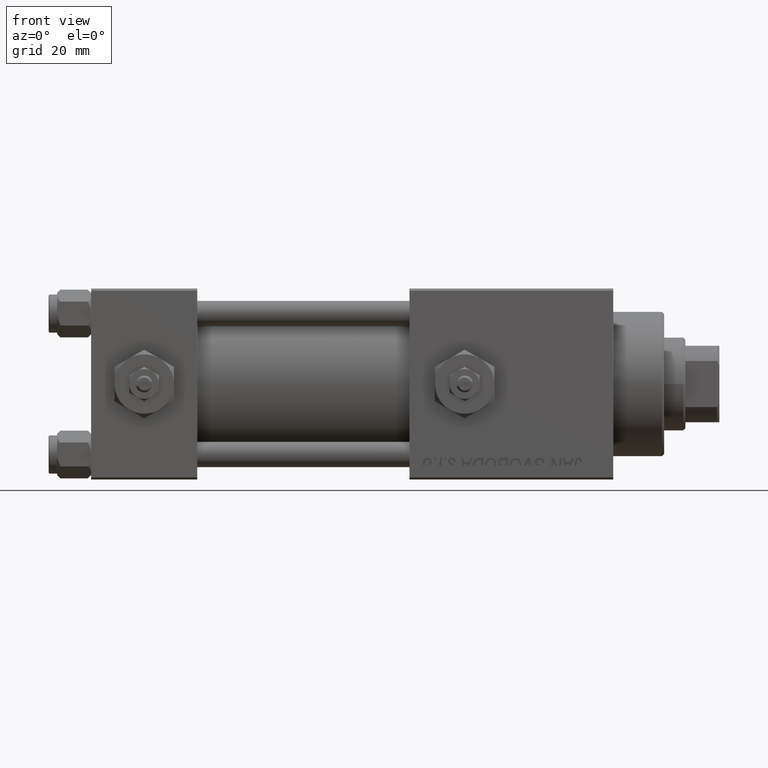
[diagram: clean part render]
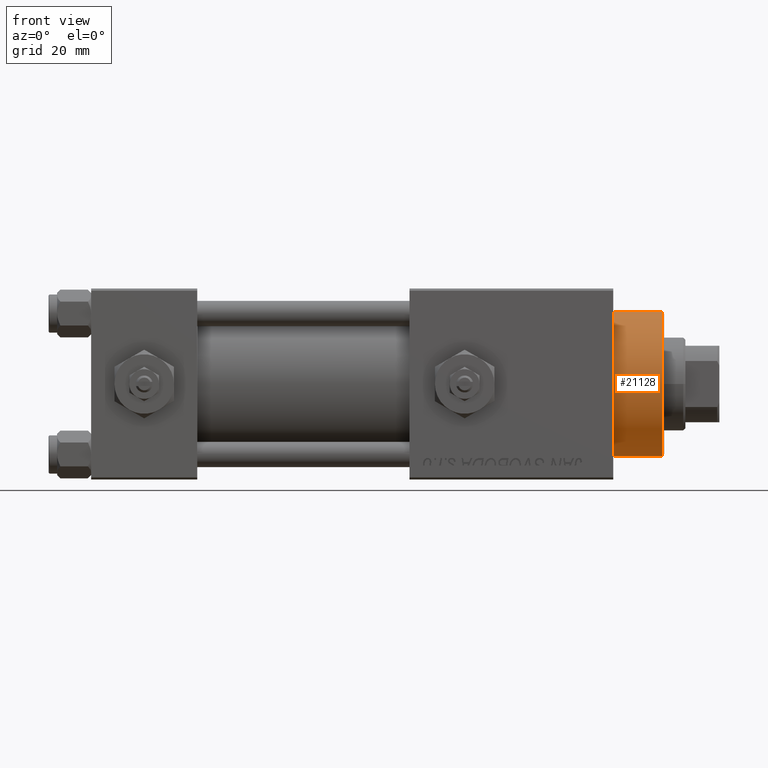
[diagram: same view with one face highlighted and labeled with its STEP entity id]
A machine part, front view. The second image highlights one B-rep face of the part: STEP entity #21128.
In plain terms, the highlighted cylindrical surface (partial cylindrical patch) has radius 17 mm, axis along (-1, -0, -0).
Its self-contained STEP definition (entity closure, byte-faithful):
#493 = DIRECTION ( 'NONE',  ( 0.000000000000000000, 0.000000000000000000, 1.000000000000000000 ) ) ;
#514 = CARTESIAN_POINT ( 'NONE',  ( 17.00000000000000000, 2.081899558550500280E-15, 28.69999999999999929 ) ) ;
#754 = DIRECTION ( 'NONE',  ( -0.000000000000000000, -0.000000000000000000, -1.000000000000000000 ) ) ;
#4962 = ORIENTED_EDGE ( 'NONE', *, *, #52103, .T. ) ;
#5837 = DIRECTION ( 'NONE',  ( -0.000000000000000000, -0.000000000000000000, -1.000000000000000000 ) ) ;
#7835 = CARTESIAN_POINT ( 'NONE',  ( 0.000000000000000000, 0.000000000000000000, 40.19999999999999574 ) ) ;
#8424 = FACE_OUTER_BOUND ( 'NONE', #37387, .T. ) ;
#11572 = EDGE_CURVE ( 'NONE', #38994, #27181, #49882, .T. ) ;
#11927 = VECTOR ( 'NONE', #31967, 1000.000000000000000 ) ;
#12512 = AXIS2_PLACEMENT_3D ( 'NONE', #7835, #40274, #15493 ) ;
#13745 = CARTESIAN_POINT ( 'NONE',  ( 17.00000000000000000, 2.081899558550500280E-15, 40.70000000000000284 ) ) ;
#15493 = DIRECTION ( 'NONE',  ( 1.000000000000000000, 0.000000000000000000, 0.000000000000000000 ) ) ;
#16190 = VERTEX_POINT ( 'NONE', #49885 ) ;
#16345 = CARTESIAN_POINT ( 'NONE',  ( 0.000000000000000000, 0.000000000000000000, 28.69999999999999929 ) ) ;
#16606 = DIRECTION ( 'NONE',  ( -1.000000000000000000, 0.000000000000000000, 0.000000000000000000 ) ) ;
#16731 = CIRCLE ( 'NONE', #12512, 17.00000000000000000 ) ;
#18510 = CIRCLE ( 'NONE', #43914, 17.00000000000000000 ) ;
#21128 = ADVANCED_FACE ( 'NONE', ( #8424 ), #44316, .T. ) ;
#21842 = AXIS2_PLACEMENT_3D ( 'NONE', #24509, #754, #16606 ) ;
#24509 = CARTESIAN_POINT ( 'NONE',  ( 0.000000000000000000, 0.000000000000000000, 40.70000000000000284 ) ) ;
#24838 = EDGE_CURVE ( 'NONE', #16190, #27181, #18510, .T. ) ;
#26980 = ORIENTED_EDGE ( 'NONE', *, *, #24838, .T. ) ;
#27181 = VERTEX_POINT ( 'NONE', #514 ) ;
#27935 = ORIENTED_EDGE ( 'NONE', *, *, #11572, .F. ) ;
#28630 = EDGE_CURVE ( 'NONE', #48704, #16190, #46773, .T. ) ;
#31967 = DIRECTION ( 'NONE',  ( -0.000000000000000000, -0.000000000000000000, -1.000000000000000000 ) ) ;
#35128 = CARTESIAN_POINT ( 'NONE',  ( -17.00000000000000000, 0.000000000000000000, 40.19999999999999574 ) ) ;
#35464 = CARTESIAN_POINT ( 'NONE',  ( 17.00000000000000000, 2.081899558550500280E-15, 40.19999999999999574 ) ) ;
#37387 = EDGE_LOOP ( 'NONE', ( #27935, #4962, #50165, #26980 ) ) ;
#38994 = VERTEX_POINT ( 'NONE', #35464 ) ;
#39370 = CARTESIAN_POINT ( 'NONE',  ( -17.00000000000000000, 0.000000000000000000, 40.70000000000000284 ) ) ;
#40274 = DIRECTION ( 'NONE',  ( 0.000000000000000000, 0.000000000000000000, -1.000000000000000000 ) ) ;
#40349 = DIRECTION ( 'NONE',  ( 1.000000000000000000, 0.000000000000000000, 0.000000000000000000 ) ) ;
#43914 = AXIS2_PLACEMENT_3D ( 'NONE', #16345, #493, #40349 ) ;
#44316 = CYLINDRICAL_SURFACE ( 'NONE', #21842, 17.00000000000000000 ) ;
#44977 = VECTOR ( 'NONE', #5837, 1000.000000000000000 ) ;
#46773 = LINE ( 'NONE', #39370, #11927 ) ;
#48704 = VERTEX_POINT ( 'NONE', #35128 ) ;
#49882 = LINE ( 'NONE', #13745, #44977 ) ;
#49885 = CARTESIAN_POINT ( 'NONE',  ( -17.00000000000000000, 0.000000000000000000, 28.69999999999999929 ) ) ;
#50165 = ORIENTED_EDGE ( 'NONE', *, *, #28630, .T. ) ;
#52103 = EDGE_CURVE ( 'NONE', #38994, #48704, #16731, .T. ) ;